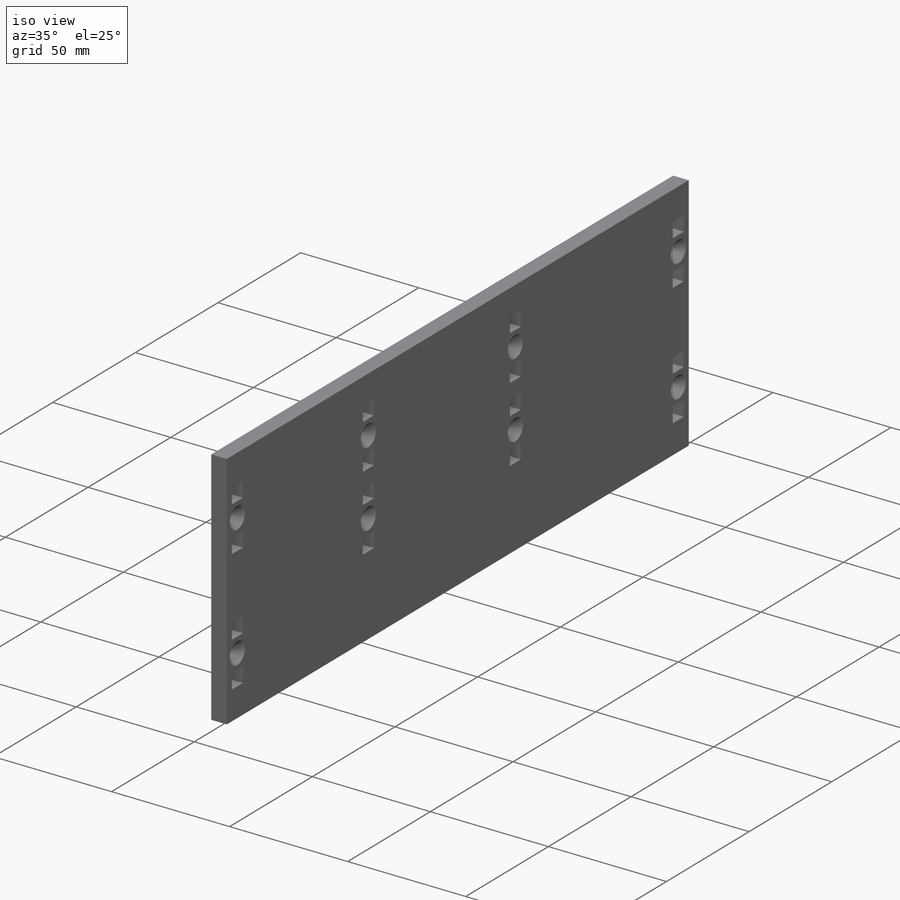
[diagram: iso view]
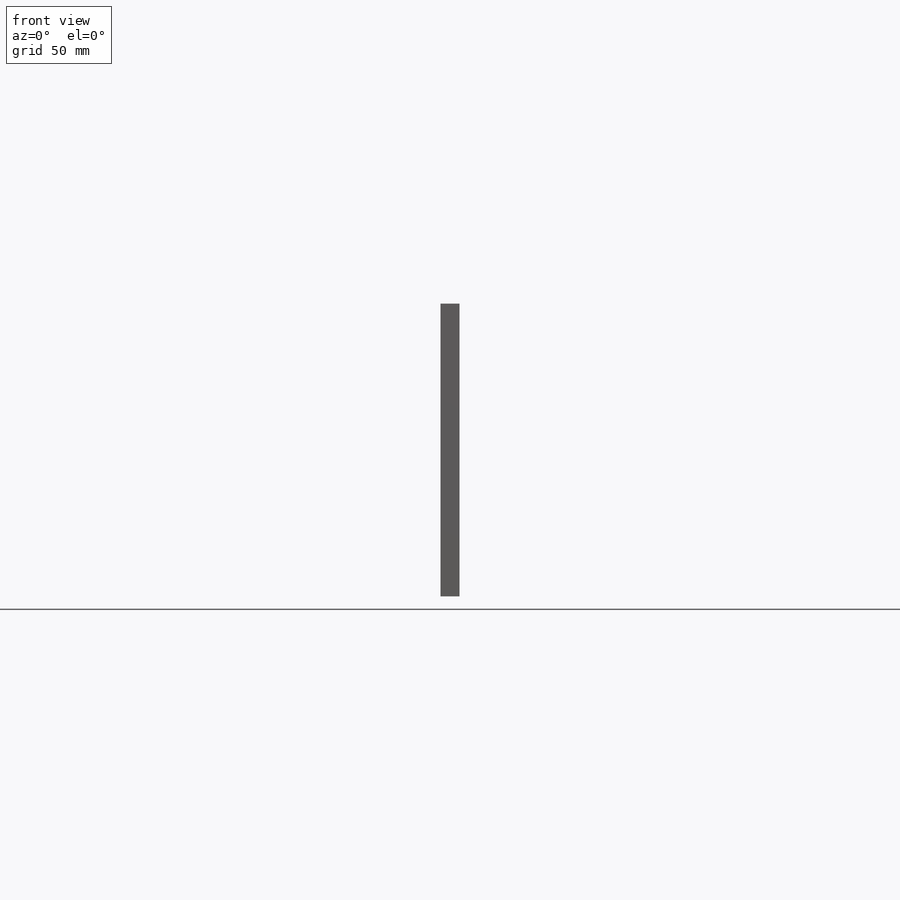
[diagram: front view]
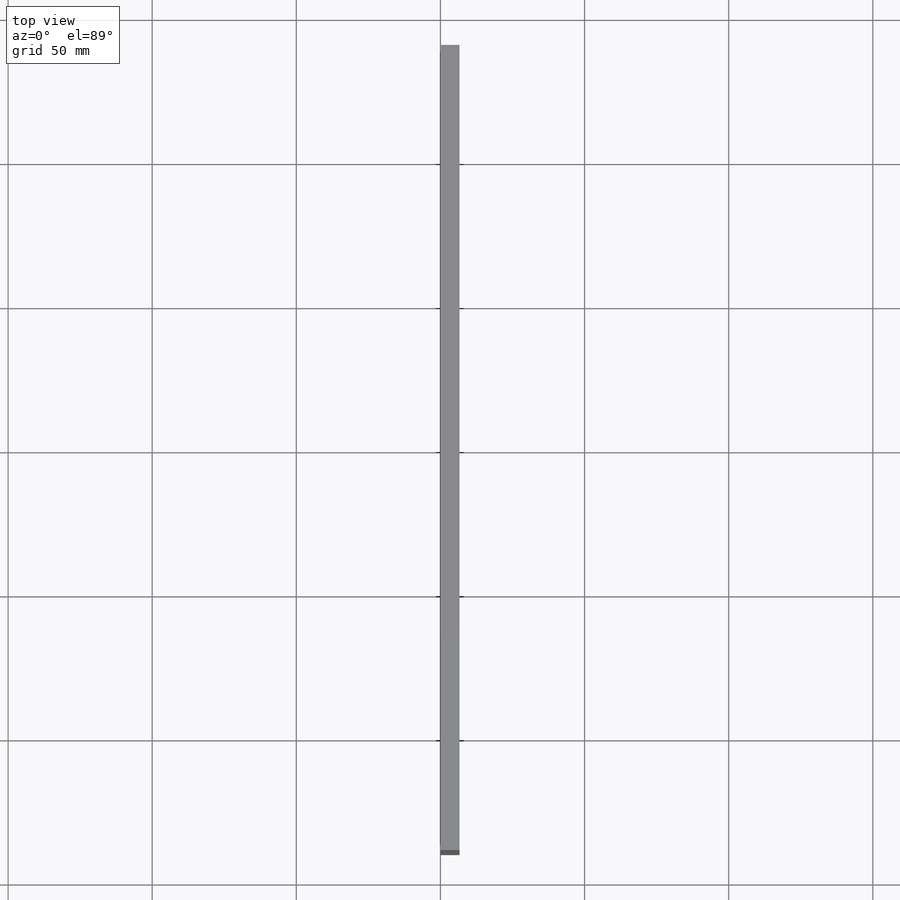
[diagram: top view]
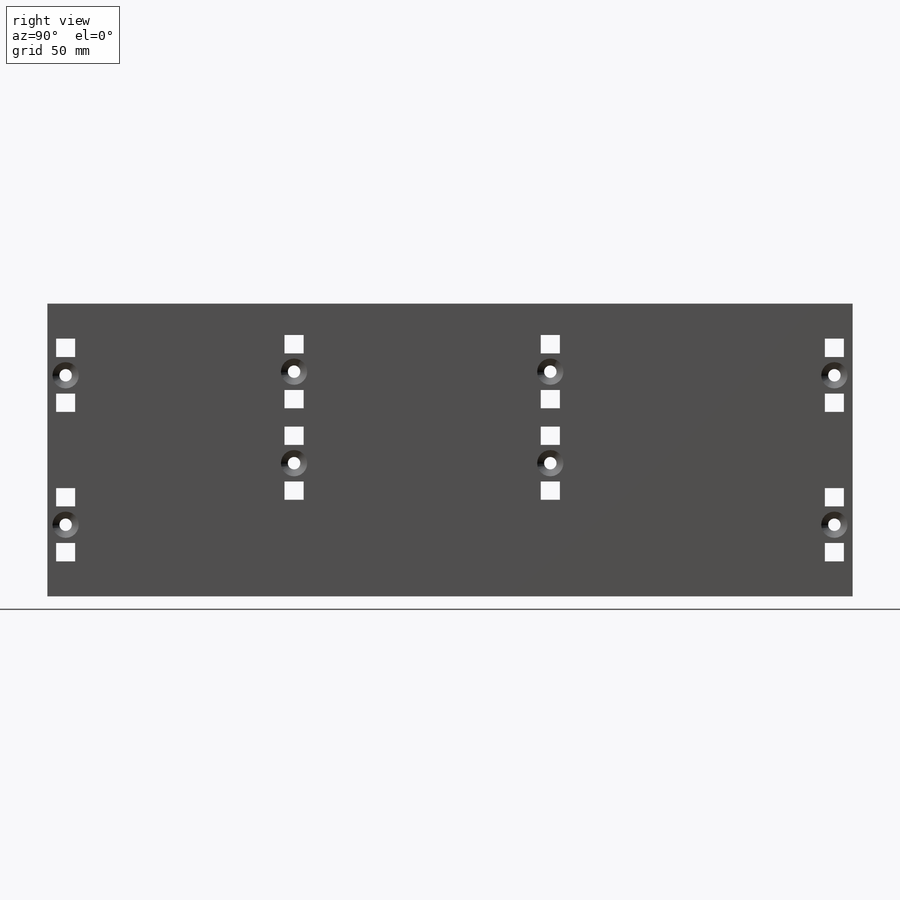
[diagram: right view]
SOLIDWORKS PART (.sldprt)
format: sldprt  version: not decoded by parser v0  size: 556,032 bytes
history: native  units: mm
features: sketch x11, material x1, extrude x1, cut_extrude x1, hole x1 (+12 scaffold rows collapsed)
feature tree (27):
  scaffold x12  (default folders/planes/origin — collapsed)
  material  "Acrylic (Blue)"
  sketch  "Sketch1"  dims[D1=4.3053mm D2=6.35mm D3=6.604mm D4=12.7mm]
  sketch  "BOLT_HOLE-2"
  sketch  "BOLT_HOLE-3"
  sketch  "BOLT_HOLE-4"  dims[c1.D1=286.004mm c1.D2=101.6mm c1.D3=266.7mm c1.D4=51.8414mm c2.D1=6.35mm]
  extrude  "Boss-Extrude1"  Depth=6.604mm
  sketch  "Sketch2"
  sketch  "BOLT_HOLE-5"
  sketch  "BOLT_HOLE-6"
  sketch  "BOLT_HOLE-7"
  sketch  "BOLT_HOLE-8"  dims[D1=19.05mm D2=88.9mm D3=10.922mm D4=101.6mm]
  cut_extrude  "Cut-Extrude1"  [1 undecoded]
  hole  "CSK for #8 Flat Head Socket Cap Screw1"  Diameter=4.3053mm Depth=6.604mm
  sketch  "Sketch4"
  sketch  "Sketch3"  dims[hole-wizard template sketch: 60 standard entries collapsed; hole parameters above]
decode coverage: 6 of 14 modeling features carry decoded parameters
note: ~ marks probable driven/reference dimensions
note: 1 parameter value undecoded
note: suppression state not decoded; provenance and decode notes live in map.json
